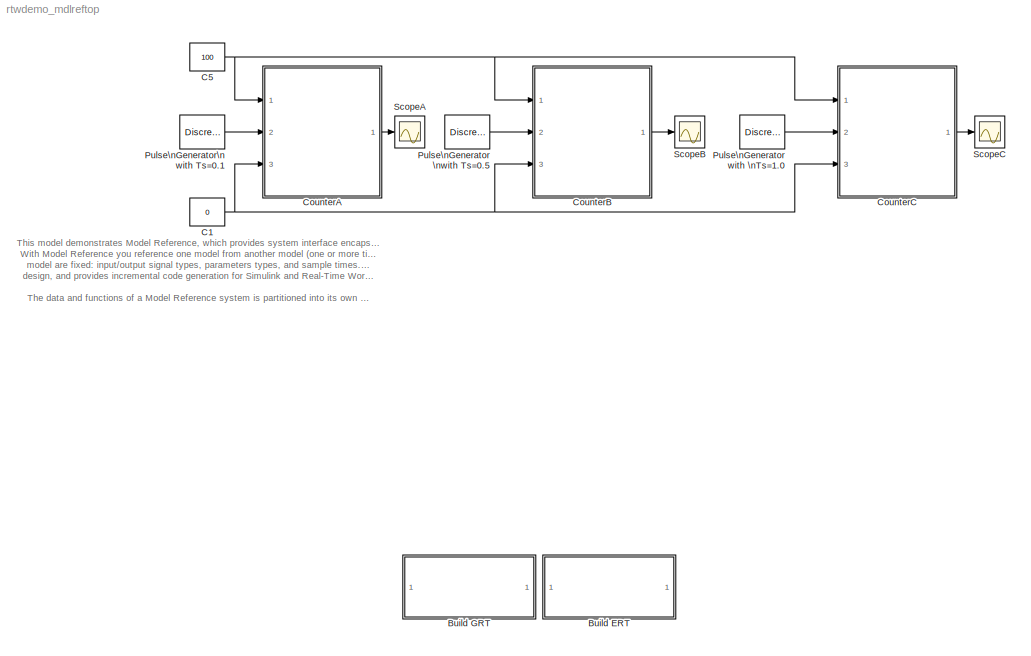
MODEL rtwdemo_mdlreftop
KIND model
BLOCK [SubSystem] Build ERT
  AncestorBlock = rtwdemowidgets/Build ERT
  MaskDescription = Enter the attributes of the configuration set that you want preserved.  Otherwise, the default configuration script will override your current settings.
  MaskDisplay = disp(['Generate Code Using\\n',...\n	  'Real-Time Workshop\\n',...\n	  'Embedded Coder\\n'...\n	  '(double-click)'])
  MaskEnableString = on
  MaskIconFrame = on
  MaskIconOpaque = on
  MaskIconRotate = none
  MaskIconUnits = autoscale
  MaskPromptString = List of attributes to preserve (cell of strings):
  MaskStyleString = edit
  MaskToolTipString = on
  MaskTunableValueString = off
  MaskValueString = {'CustomSymbolStr'}
  MaskVariables = attrib_overrides=&1;
  MaskVisibilityString = on
  MinAlgLoopOccurrences = off
  OpenFcn = try                                              \n  if ~exist('rtwdemo_ert', 'dir')                \n    mkdir('rtwdemo_ert')                         \n  end                                            \n  cd('rtwdemo_ert');                             \n  overrides=get_param(gcb,'attrib_overrides');   \n  model='rtwdemo_mdlrefbot';                     \n  load_system(model);                      ...<+773ch>
  Ports = []
  PropExecContextAcrossSSBoundary = on
  RTWSystemCode = Auto
  TreatAsAtomicUnit = off
BLOCK [SubSystem] Build GRT
  AncestorBlock = rtwdemowidgets/Build GRT
  MaskDescription = Enter the attributes of the configuration set that you want preserved.  Otherwise, the default configuration script will override your current settings.
  MaskDisplay = disp(['Generate Code Using\\n',...\n	  'Real-Time Workshop\\n',...\n	  '(double-click)'])
  MaskEnableString = on
  MaskIconFrame = on
  MaskIconOpaque = on
  MaskIconRotate = none
  MaskIconUnits = autoscale
  MaskPromptString = List of attributes to preserve (cell of strings):
  MaskStyleString = edit
  MaskToolTipString = on
  MaskTunableValueString = off
  MaskValueString = {}
  MaskVariables = attrib_overrides=&1;
  MaskVisibilityString = on
  MinAlgLoopOccurrences = off
  OpenFcn = try                                             \n  if ~exist('rtwdemo_grt','dir')                \n    mkdir('rtwdemo_grt');                       \n  end                                           \n  chdir('rtwdemo_grt')                          \n  overrides=get_param(gcb,'attrib_overrides');  \n  model='rtwdemo_mdlrefbot';                    \n  load_system(model);                           \n...<+450ch>
  Ports = []
  PropExecContextAcrossSSBoundary = on
  RTWSystemCode = Auto
  TreatAsAtomicUnit = off
BLOCK [Constant] C1
  Value = 0
BLOCK [Constant] C5
  Value = 100
BLOCK [ModelReference] CounterA
  CopyOfModelName = rtwdemo_mdlrefbot
  DefaultDataLogging = off
  ModelName = rtwdemo_mdlrefbot
  ModelReferenceVersion = 1.67
  Ports = [3, 1]
BLOCK [ModelReference] CounterB
  CopyOfModelName = rtwdemo_mdlrefbot
  DefaultDataLogging = off
  ModelName = rtwdemo_mdlrefbot
  ModelReferenceVersion = 1.67
  Ports = [3, 1]
BLOCK [ModelReference] CounterC
  CopyOfModelName = rtwdemo_mdlrefbot
  DefaultDataLogging = off
  ModelName = rtwdemo_mdlrefbot
  ModelReferenceVersion = 1.67
  Ports = [3, 1]
BLOCK [DiscretePulseGenerator] Pulse\nGenerator \nwith Ts=0.5
  Ports = [0, 1]
  SampleTime = 0.5
BLOCK [DiscretePulseGenerator] Pulse\nGenerator with \nTs=1.0
  Ports = [0, 1]
  SampleTime = 1.0
BLOCK [DiscretePulseGenerator] Pulse\nGenerator\n with Ts=0.1
  Ports = [0, 1]
  SampleTime = 0.1
  VectorParams1D = off
BLOCK [Scope] ScopeA
  DataFormat = StructureWithTime
  NumInputPorts = 1
  Ports = [1]
  TimeRange = 10
  YMax = 100
  YMin = 0
BLOCK [Scope] ScopeB
  DataFormat = StructureWithTime
  NumInputPorts = 1
  Ports = [1]
  SaveName = ScopeData1
  TimeRange = 10
  YMax = 25
  YMin = 0
BLOCK [Scope] ScopeC
  DataFormat = StructureWithTime
  NumInputPorts = 1
  Ports = [1]
  SaveName = ScopeData2
  TimeRange = 10
  YMax = 15
  YMin = 0
ANNOTATION (root): This model demonstrates Model Reference, which provides system interface encapsulation and incremental code generation.\nWith Model Reference you reference one model from another model (one or more times), whereby all aspects of the referenced\nmodel are fixed: input/output signal types, parameters types, and sample times. This allows you to modularize your\ndesign, and provides incremental code g...<+845ch>
NET C1:1 -> CounterA:3, CounterB:3, CounterC:3
NET C5:1 -> CounterA:1, CounterB:1, CounterC:1
LINE CounterA:1 -> ScopeA:1
LINE CounterB:1 -> ScopeB:1
LINE CounterC:1 -> ScopeC:1
LINE Pulse\nGenerator \nwith Ts=0.5:1 -> CounterB:2
LINE Pulse\nGenerator with \nTs=1.0:1 -> CounterC:2
LINE Pulse\nGenerator\n with Ts=0.1:1 -> CounterA:2
note: NET lines group one-source signal fan-out (src -> all destinations, sorted); 1:1 wires keep LINE
